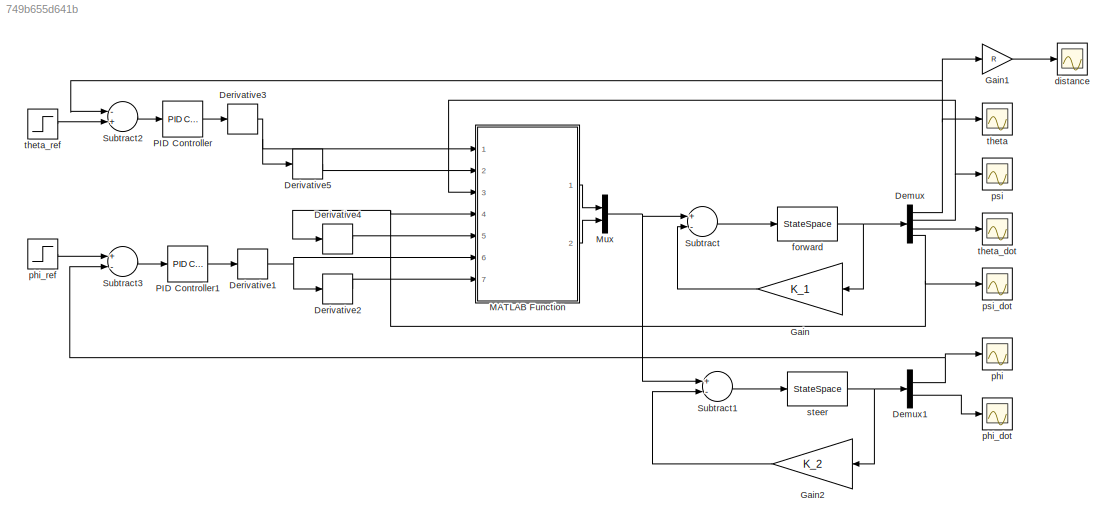
MODEL slx_749b655d641b
KIND model
CONFIG AbsTol = auto
CONFIG EnableMultiTasking = off
CONFIG FixedStep = auto
CONFIG MaxStep = auto
CONFIG MinStep = auto
CONFIG RelTol = 1e-5
CONFIG SampleTimeConstraint = Unconstrained
CONFIG Solver = VariableStepAuto
CONFIG SolverName = VariableStepAuto
CONFIG StartTime = 0.0
CONFIG StopTime = 10.0
BLOCK [Demux] Demux
  DisplayOption = bar
  Ports = [1, 4]
BLOCK [Demux] Demux1
  DisplayOption = bar
  Outputs = 2
  Ports = [1, 2]
BLOCK [Derivative] Derivative1
BLOCK [Derivative] Derivative2
BLOCK [Derivative] Derivative3
BLOCK [Derivative] Derivative4
BLOCK [Derivative] Derivative5
BLOCK [Gain] Gain
  Gain = K_1
  Multiplication = Matrix(K*u)
  OutDataTypeStr = Inherit: Inherit via internal rule
  ParamDataTypeStr = Inherit: Inherit via internal rule
  SaturateOnIntegerOverflow = off
BLOCK [Gain] Gain1
  Gain = R
  OutDataTypeStr = Inherit: Inherit via internal rule
  ParamDataTypeStr = Inherit: Inherit via internal rule
  SaturateOnIntegerOverflow = off
BLOCK [Gain] Gain2
  Gain = K_2
  Multiplication = Matrix(K*u)
  OutDataTypeStr = Inherit: Inherit via internal rule
  ParamDataTypeStr = Inherit: Inherit via internal rule
  SaturateOnIntegerOverflow = off
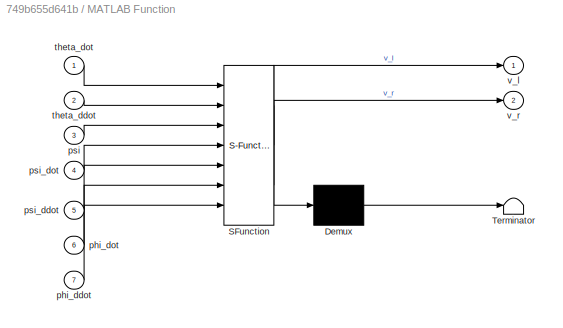
BLOCK [SubSystem] MATLAB Function
  ErrorFcn = Stateflow.Translate.translate
  PermitHierarchicalResolution = ExplicitOnly
  Ports = [7, 2]
  RequestExecContextInheritance = off
  SFBlockType = MATLAB Function
  TreatAsAtomicUnit = on
BLOCK [Demux] MATLAB Function/ Demux 
  Outputs = 1
  Ports = [1, 1]
BLOCK [S-Function] MATLAB Function/ SFunction 
  EnableBusSupport = on
  FunctionName = sf_sfun
  PortCounts = [7 3]
  Ports = [7, 3]
  SFcnIsStateOwnerBlock = off
  SFunctionDeploymentMode = off
  Tag = Stateflow S-Function 2
BLOCK [Terminator] MATLAB Function/ Terminator 
BLOCK [Inport] MATLAB Function/phi_ddot
  IconDisplay = Port number
  Port = 7
BLOCK [Inport] MATLAB Function/phi_dot
  IconDisplay = Port number
  Port = 6
BLOCK [Inport] MATLAB Function/psi
  IconDisplay = Port number
  Port = 3
BLOCK [Inport] MATLAB Function/psi_ddot
  IconDisplay = Port number
  Port = 5
BLOCK [Inport] MATLAB Function/psi_dot
  IconDisplay = Port number
  Port = 4
BLOCK [Inport] MATLAB Function/theta_ddot
  IconDisplay = Port number
  Port = 2
BLOCK [Inport] MATLAB Function/theta_dot
  IconDisplay = Port number
BLOCK [Outport] MATLAB Function/v_l
  IconDisplay = Port number
BLOCK [Outport] MATLAB Function/v_r
  IconDisplay = Port number
  Port = 2
BLOCK [Mux] Mux
  DisplayOption = bar
  Inputs = 2
  Ports = [2, 1]
BLOCK [Reference] PID Controller  REF=simulink/Continuous/PID Controller
  Ports = [1, 1]
  SourceBlock = simulink/Continuous/PID Controller
  SourceProductBaseCode = SL
  SourceProductName = Simulink
  SourceType = PID 1dof
BLOCK [Reference] PID Controller1  REF=simulink/Continuous/PID Controller
  Ports = [1, 1]
  SourceBlock = simulink/Continuous/PID Controller
  SourceProductBaseCode = SL
  SourceProductName = Simulink
  SourceType = PID 1dof
BLOCK [Sum] Subtract
  InputSameDT = off
  Inputs = +-
  OutDataTypeStr = Inherit: Inherit via internal rule
  Ports = [2, 1]
  SaturateOnIntegerOverflow = off
BLOCK [Sum] Subtract1
  InputSameDT = off
  Inputs = +-
  OutDataTypeStr = Inherit: Inherit via internal rule
  Ports = [2, 1]
  SaturateOnIntegerOverflow = off
BLOCK [Sum] Subtract2
  InputSameDT = off
  Inputs = -+
  OutDataTypeStr = Inherit: Inherit via internal rule
  Ports = [2, 1]
  SaturateOnIntegerOverflow = off
BLOCK [Sum] Subtract3
  InputSameDT = off
  Inputs = +-
  OutDataTypeStr = Inherit: Inherit via internal rule
  Ports = [2, 1]
  SaturateOnIntegerOverflow = off
BLOCK [Scope] distance
  Floating = off
  NumInputPorts = 1
  Ports = [1]
  ScopeSpecificationString = Simulink.scopes.TimeScopeBlockCfg('CurrentConfiguration', extmgr.ConfigurationSet(extmgr.Configuration('Core','General UI',true),extmgr.Configuration('Core','Source UI',true),extmgr.Configuration('Sources','WiredSimulink',true,'DataLoggingVariableName','ScopeData6'),extmgr.Configuration('Visuals','Time Domain',true,'SerializedDisplays',{struct('MinYLimReal','-0.00442','MaxYLimReal','0.03975','YLab...<+1364ch>
BLOCK [StateSpace] forward
  A = A_1
  B = B_1
  C = [1 0 0 0; 0 1 0 0; 0 0 0 0; 0 0 0 0]
  D = [0 0; 0 0; 0 0; 0 0]
  InitialCondition = 0
  Ports = [1, 1]
BLOCK [Scope] phi
  Floating = off
  NumInputPorts = 1
  Ports = [1]
  ScopeSpecificationString = Simulink.scopes.TimeScopeBlockCfg('CurrentConfiguration', extmgr.ConfigurationSet(extmgr.Configuration('Core','General UI',true),extmgr.Configuration('Core','Source UI',true),extmgr.Configuration('Sources','WiredSimulink',true,'DataLoggingVariableName','ScopeData3'),extmgr.Configuration('Visuals','Time Domain',true,'SerializedDisplays',{struct('MinYLimReal','-1.00000','MaxYLimReal','1.00000','YLab...<+1396ch>
BLOCK [Scope] phi_dot
  Floating = off
  NumInputPorts = 1
  Ports = [1]
  ScopeSpecificationString = Simulink.scopes.TimeScopeBlockCfg('CurrentConfiguration', extmgr.ConfigurationSet(extmgr.Configuration('Core','General UI',true),extmgr.Configuration('Core','Source UI',true),extmgr.Configuration('Sources','WiredSimulink',true,'DataLoggingVariableName','ScopeData4'),extmgr.Configuration('Visuals','Time Domain',true,'SerializedDisplays',{struct('MinYLimReal','-0.5637','MaxYLimReal','0.06263','YLabe...<+1363ch>
BLOCK [Step] phi_ref
  After = 0.5
  SampleTime = 0
BLOCK [Scope] psi
  Floating = off
  NumInputPorts = 1
  Ports = [1]
  ScopeSpecificationString = Simulink.scopes.TimeScopeBlockCfg('CurrentConfiguration', extmgr.ConfigurationSet(extmgr.Configuration('Core','General UI',true),extmgr.Configuration('Core','Source UI',true),extmgr.Configuration('Sources','WiredSimulink',true),extmgr.Configuration('Visuals','Time Domain',true,'SerializedDisplays',{struct('MinYLimReal','-35674390919397255753780350192491759130179239344054480743752551586938956941457...<+3211ch>
BLOCK [Scope] psi_dot
  Floating = off
  NumInputPorts = 1
  Ports = [1]
  ScopeSpecificationString = Simulink.scopes.TimeScopeBlockCfg('CurrentConfiguration', extmgr.ConfigurationSet(extmgr.Configuration('Core','General UI',true),extmgr.Configuration('Core','Source UI',true),extmgr.Configuration('Sources','WiredSimulink',true,'DataLoggingVariableName','ScopeData2'),extmgr.Configuration('Visuals','Time Domain',true,'SerializedDisplays',{struct('MinYLimReal','-1.00000','MaxYLimReal','1.00000','YLab...<+1366ch>
BLOCK [StateSpace] steer
  A = A_2
  B = B_2
  C = eye(2)
  D = [0 0; 0 0]
  InitialCondition = 0
  Ports = [1, 1]
BLOCK [Scope] theta
  Floating = off
  NumInputPorts = 1
  Ports = [1]
  ScopeSpecificationString = Simulink.scopes.TimeScopeBlockCfg('CurrentConfiguration', extmgr.ConfigurationSet(extmgr.Configuration('Core','General UI',true),extmgr.Configuration('Core','Source UI',true),extmgr.Configuration('Sources','WiredSimulink',true,'DataLoggingVariableName','ScopeData5'),extmgr.Configuration('Visuals','Time Domain',true,'SerializedDisplays',{struct('MinYLimReal','-68248915710220185100709640234207966541...<+3283ch>
BLOCK [Scope] theta_dot
  Floating = off
  NumInputPorts = 1
  Ports = [1]
  ScopeSpecificationString = Simulink.scopes.TimeScopeBlockCfg('CurrentConfiguration', extmgr.ConfigurationSet(extmgr.Configuration('Core','General UI',true),extmgr.Configuration('Core','Source UI',true),extmgr.Configuration('Sources','WiredSimulink',true,'DataLoggingVariableName','ScopeData1'),extmgr.Configuration('Visuals','Time Domain',true,'SerializedDisplays',{struct('MinYLimReal','-1.00000','MaxYLimReal','1.00000','YLab...<+1421ch>
BLOCK [Step] theta_ref
  SampleTime = 0
NET Demux1:1 -> Subtract3:2, phi:1
LINE Demux1:2 -> phi_dot:1
NET Demux:1 -> Gain1:1, Subtract2:1, theta:1
NET Demux:2 -> MATLAB Function:3, psi:1
LINE Demux:3 -> theta_dot:1
NET Demux:4 -> Derivative4:1, MATLAB Function:4, psi_dot:1
NET Derivative1:1 -> Derivative2:1, MATLAB Function:6
LINE Derivative2:1 -> MATLAB Function:7
NET Derivative3:1 -> Derivative5:1, MATLAB Function:1
LINE Derivative4:1 -> MATLAB Function:5
LINE Derivative5:1 -> MATLAB Function:2
LINE Gain1:1 -> distance:1
LINE Gain2:1 -> Subtract1:2
LINE Gain:1 -> Subtract:2
LINE MATLAB Function:1 -> Mux:1
LINE MATLAB Function:2 -> Mux:2
NET Mux:1 -> Subtract1:1, Subtract:1
LINE PID Controller1:1 -> Derivative1:1
LINE PID Controller:1 -> Derivative3:1
LINE Subtract1:1 -> steer:1
LINE Subtract2:1 -> PID Controller:1
LINE Subtract3:1 -> PID Controller1:1
LINE Subtract:1 -> forward:1
NET forward:1 -> Demux:1, Gain:1
LINE phi_ref:1 -> Subtract3:1
NET steer:1 -> Demux1:1, Gain2:1
LINE theta_ref:1 -> Subtract2:2
note: NET lines group one-source signal fan-out (src -> all destinations, sorted); 1:1 wires keep LINE
CHART MATLAB Function states=1 transitions=1
  STATE_LABEL 'eML_blk_kernel()'
  STATE_LABEL 'SCRIPT:\nfunction [v_l, v_r] = fcn(theta_dot, theta_ddot, psi, psi_dot, psi_ddot, phi_dot, phi_ddot)\n%system specification error parameter\np_ss = 1.05;\n\nm = 0.08;\nR = 0.05;\nM = 0.77;\nW = 0.12;\nH = 0.16;\nD = 0.04;\n\nL = H/2;\nJ_w = (m*R^2)/2;\nJ_phi = M*(W^2 + D^2)/12;\nJ_m = 1e-5;\nR_m = 6.69;\nK_b = 0.47;\nK_t = 0.32;\nn = 1;\nf_m = 0.0022;\nf_w = 0;\n\nm_ss = m*p_ss;\nR_ss = R*p_ss;\nM_ss = M*p_ss;\nW_ss = W*p_...<+868ch>'
